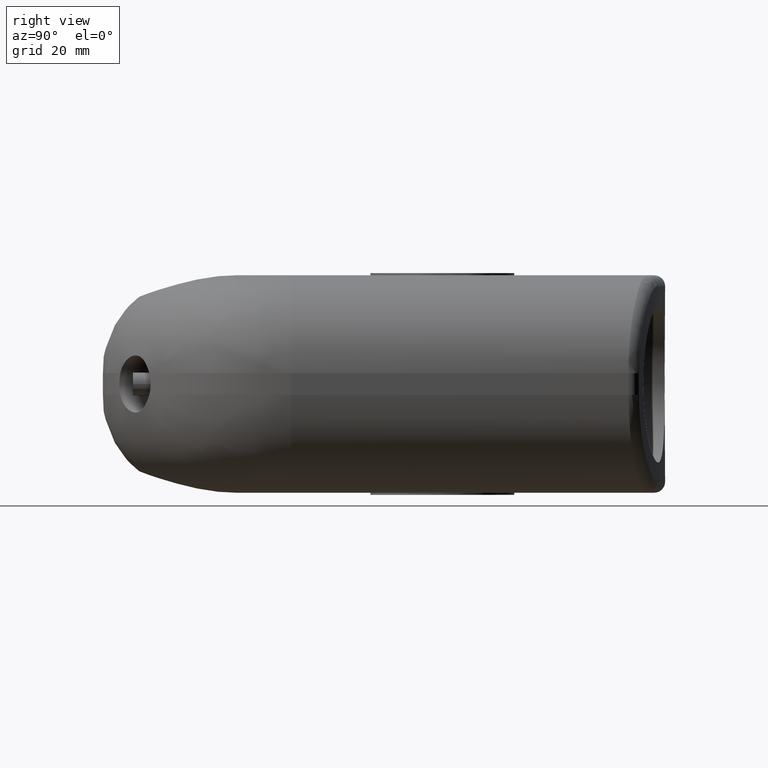
[diagram: clean part render]
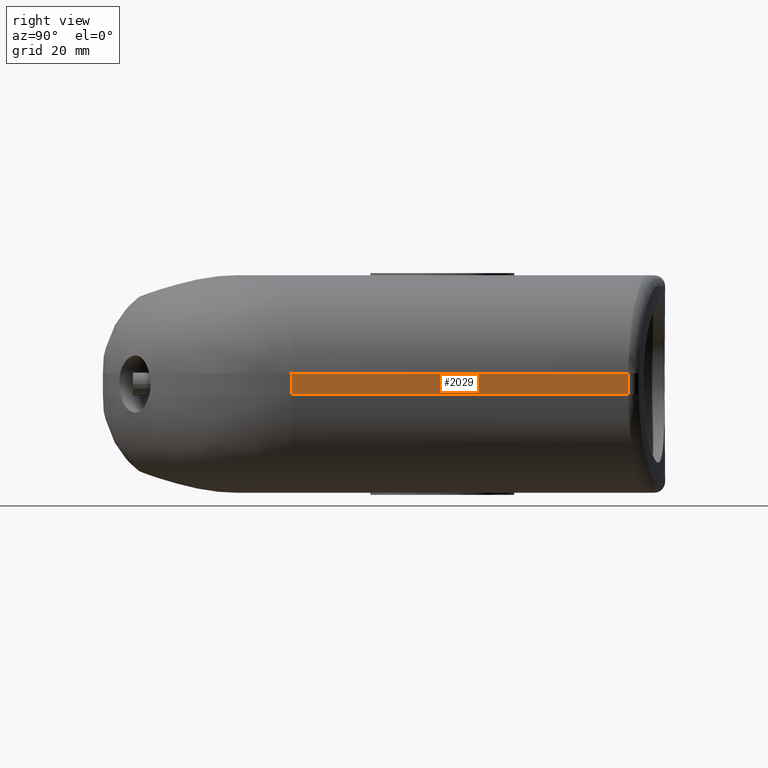
[diagram: same view with one face highlighted and labeled with its STEP entity id]
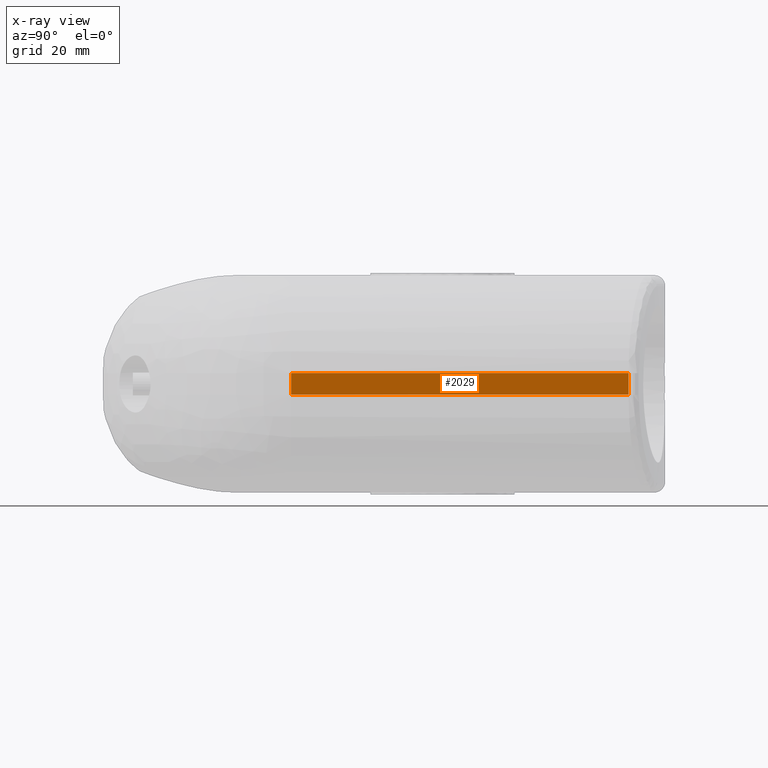
[diagram: x-ray of the same camera — body ghosted, the highlighted face saturated]
A machine part, right view. The second image highlights one B-rep face of the part: STEP entity #2029.
The next image is the same camera in x-ray: the body ghosted, the highlighted face saturated — about 0% of this face is hidden behind the body in this view.
In plain terms, the highlighted planar face has unit normal (1, -0, 0).
Its self-contained STEP definition (entity closure, byte-faithful):
#131=LINE('',#3826,#253);
#137=LINE('',#3999,#259);
#138=LINE('',#4015,#260);
#139=LINE('',#4017,#261);
#253=VECTOR('',#2804,3.8);
#259=VECTOR('',#2836,58.9476311031944);
#260=VECTOR('',#2847,58.9476311031944);
#261=VECTOR('',#2850,3.8);
#381=PLANE('',#2264);
#540=FACE_OUTER_BOUND('',#702,.T.);
#702=EDGE_LOOP('',(#1842,#1843,#1844,#1845));
#843=VERTEX_POINT('',#3053);
#1000=VERTEX_POINT('',#3804);
#1003=VERTEX_POINT('',#3824);
#1011=VERTEX_POINT('',#4011);
#1269=EDGE_CURVE('',#1003,#1000,#131,.T.);
#1288=EDGE_CURVE('',#1000,#843,#137,.T.);
#1291=EDGE_CURVE('',#1011,#1003,#138,.T.);
#1292=EDGE_CURVE('',#843,#1011,#139,.T.);
#1842=ORIENTED_EDGE('',*,*,#1269,.F.);
#1843=ORIENTED_EDGE('',*,*,#1291,.F.);
#1844=ORIENTED_EDGE('',*,*,#1292,.F.);
#1845=ORIENTED_EDGE('',*,*,#1288,.F.);
#2029=ADVANCED_FACE('',(#540),#381,.T.);
#2264=AXIS2_PLACEMENT_3D('',#4016,#2848,#2849);
#2804=DIRECTION('',(0.,0.,-1.));
#2836=DIRECTION('',(-5.93972607329229E-17,-1.,0.));
#2847=DIRECTION('',(5.93972607329229E-17,1.,0.));
#2848=DIRECTION('center_axis',(1.,-5.93972607329229E-17,0.));
#2849=DIRECTION('ref_axis',(0.,1.,0.));
#2850=DIRECTION('',(0.,0.,1.));
#3053=CARTESIAN_POINT('',(36.,13.8535376133503,-1.9));
#3804=CARTESIAN_POINT('',(36.,72.8011687165447,-1.9));
#3824=CARTESIAN_POINT('',(36.,72.8011687165447,1.9));
#3826=CARTESIAN_POINT('',(36.,72.8011687165447,0.));
#3999=CARTESIAN_POINT('',(36.,16.4296012004241,-1.9));
#4011=CARTESIAN_POINT('',(36.,13.8535376133503,1.9));
#4015=CARTESIAN_POINT('',(36.,16.4296012004241,1.9));
#4016=CARTESIAN_POINT('Origin',(36.,-0.515941117535652,0.));
#4017=CARTESIAN_POINT('',(36.,13.8535376133503,0.));